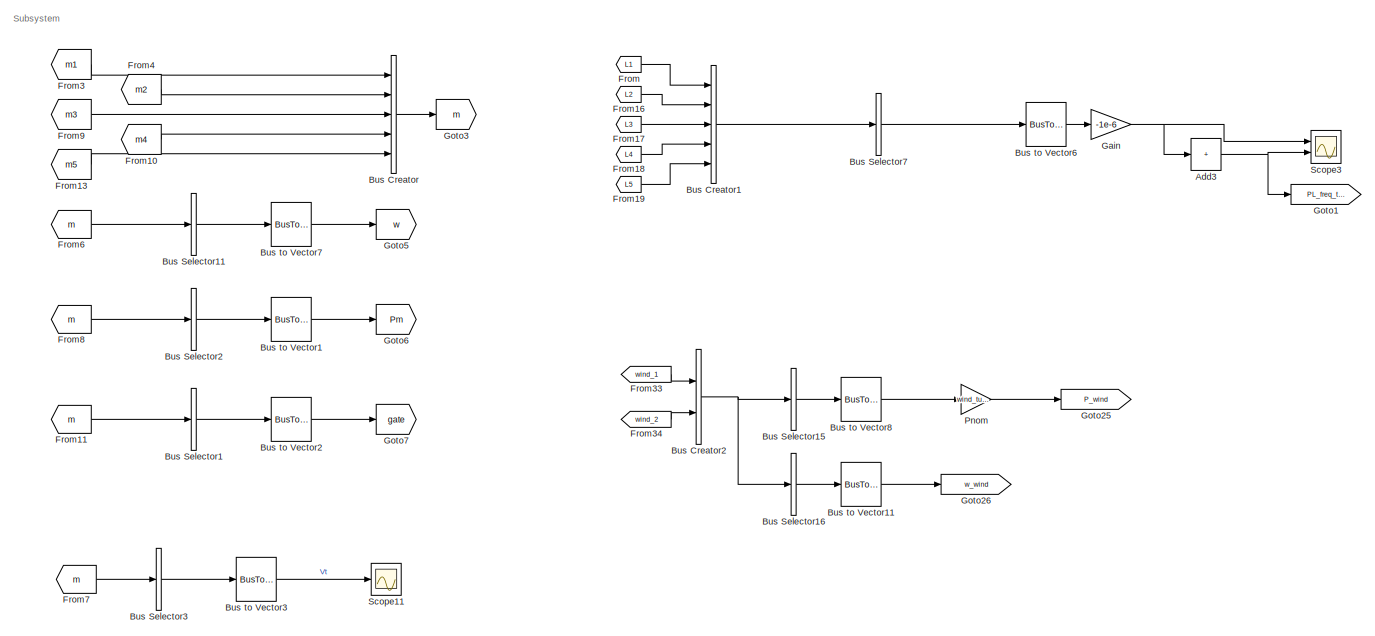
[diagram: root canvas - part 1/9, top left region]
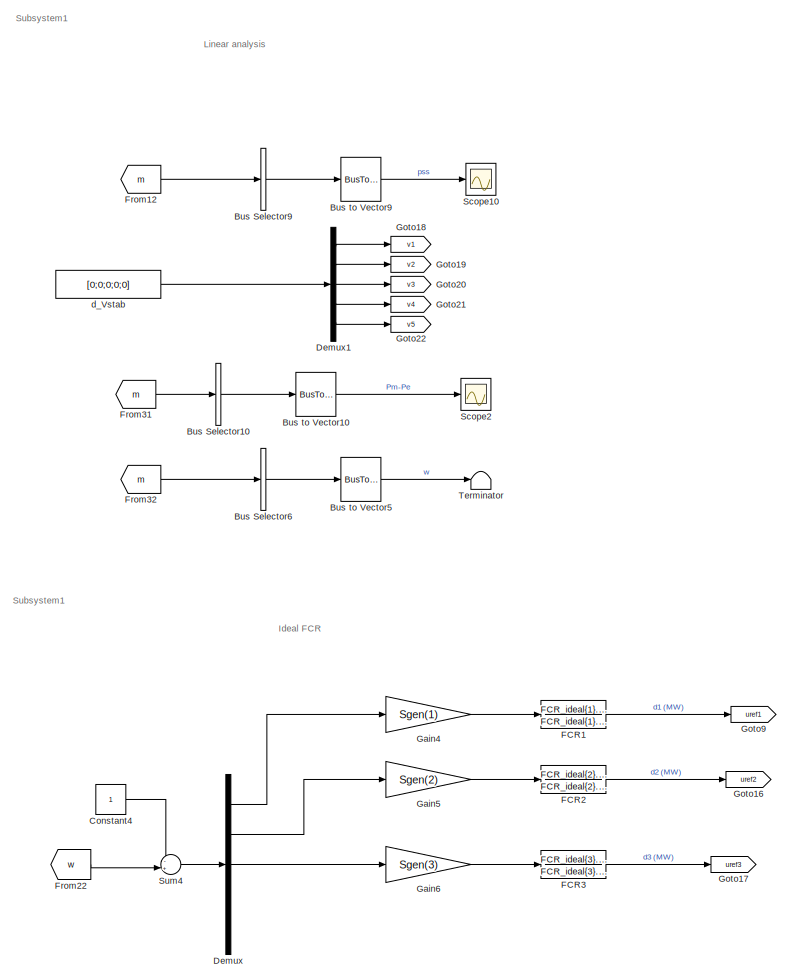
[diagram: root canvas - part 2/9, middle right region]
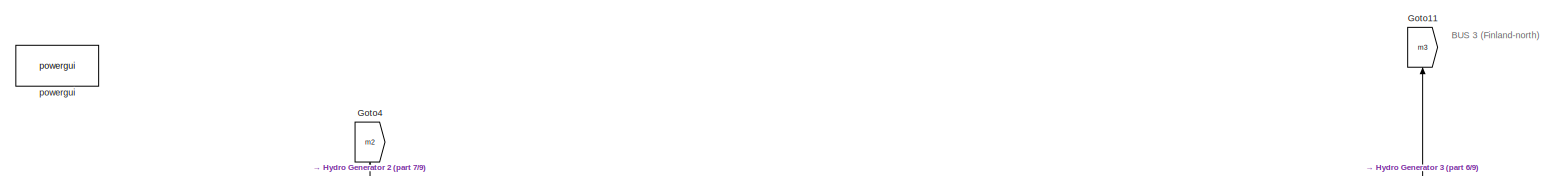
[diagram: root canvas - part 3/9, top center region]
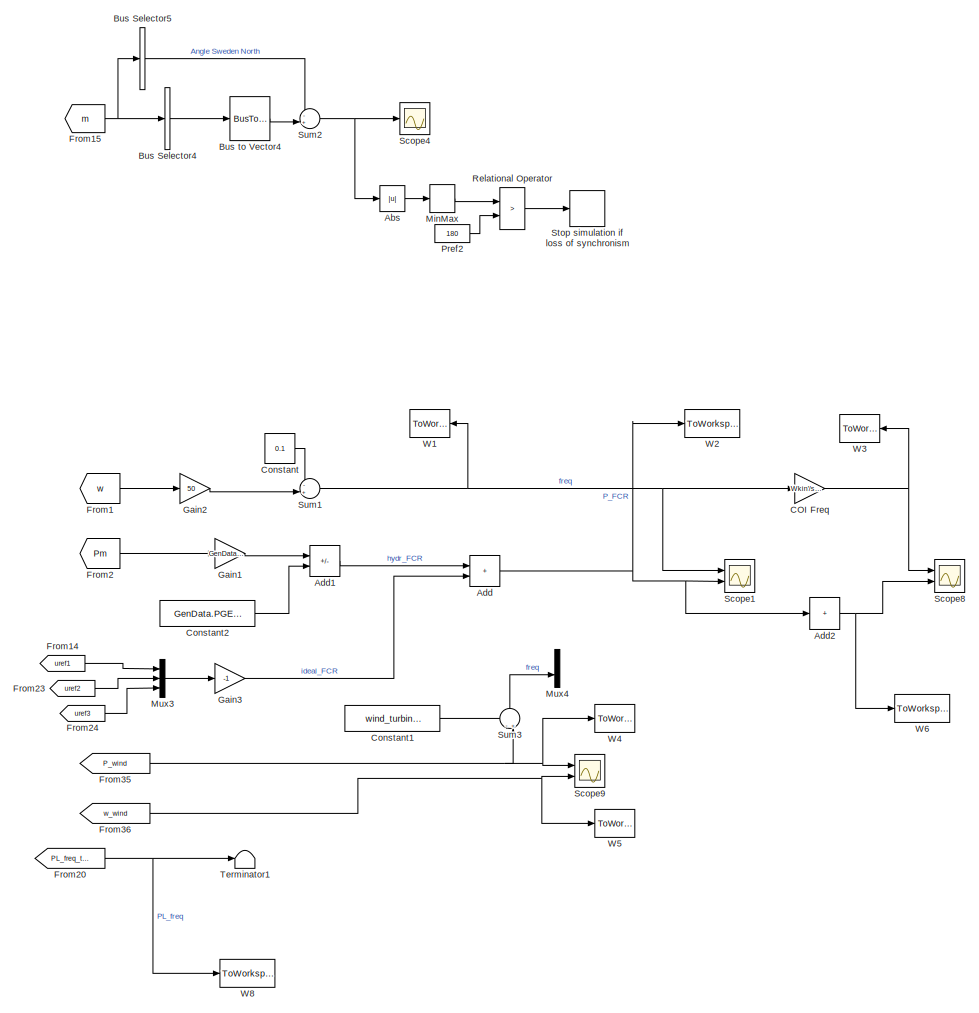
[diagram: root canvas - part 4/9, middle left region]
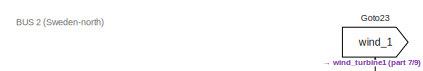
[diagram: root canvas - part 5/9, central region]
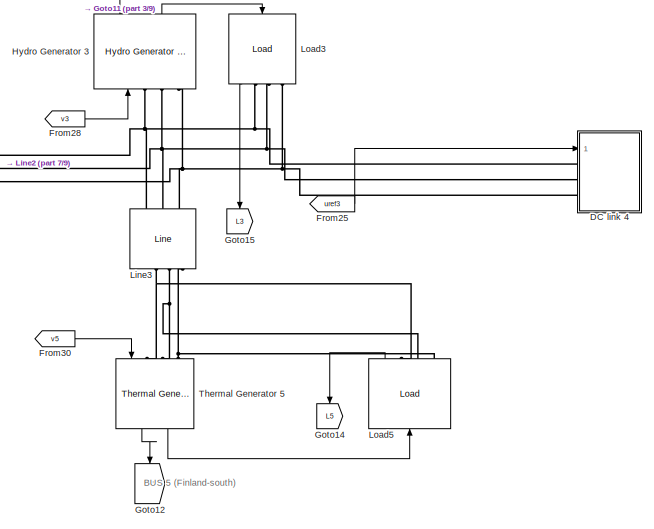
[diagram: root canvas - part 6/9, middle right region]
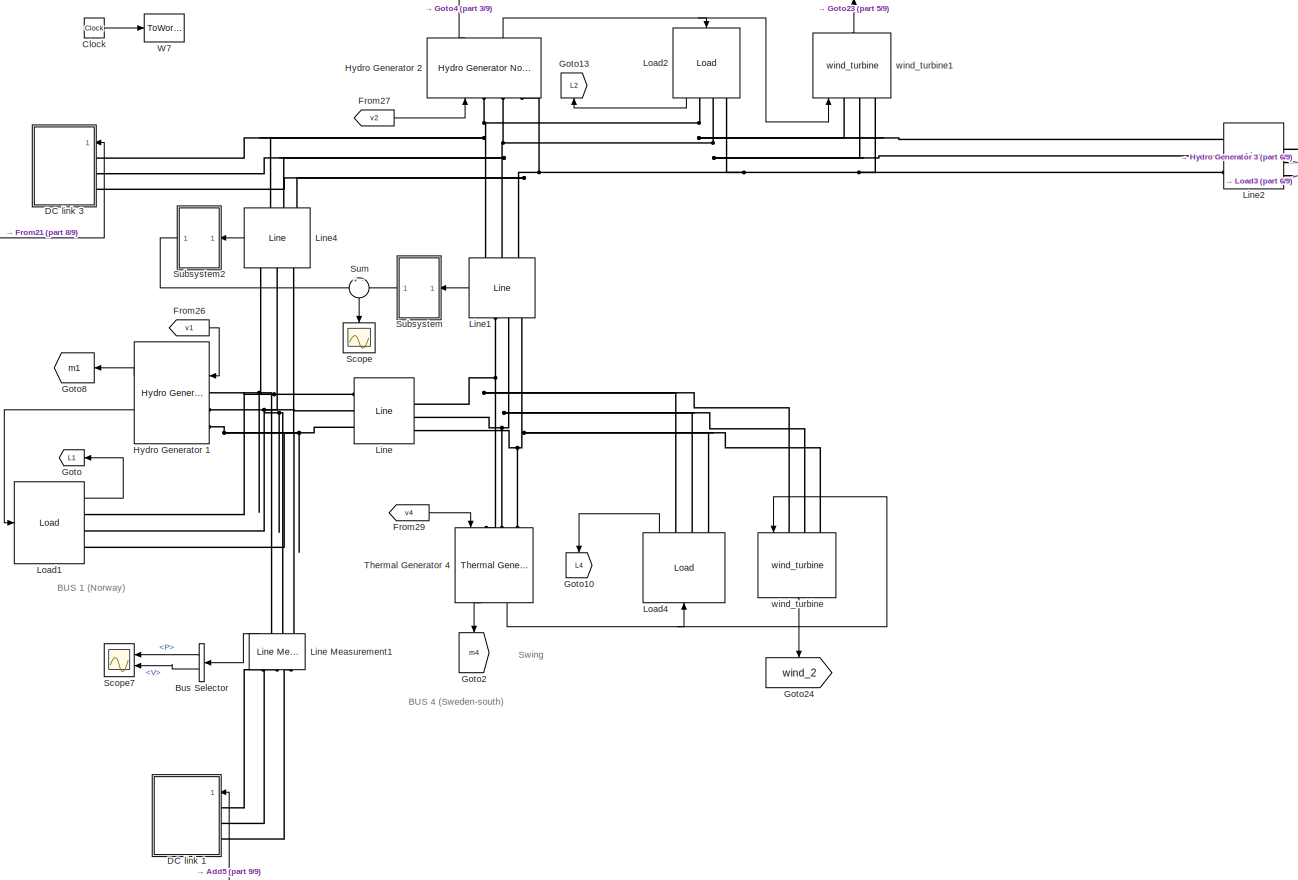
[diagram: root canvas - part 7/9, bottom center region]
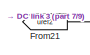
[diagram: root canvas - part 8/9, middle left region]
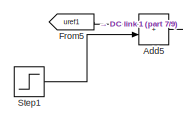
[diagram: root canvas - part 9/9, bottom center region]
MODEL slx_a2def950f768
KIND model
CONFIG AbsTol = 1e-1
CONFIG EnableMultiTasking = on
CONFIG FixedStep = auto
CONFIG MaxStep = 1/60
CONFIG MinStep = auto
CONFIG PreLoadFcn = %load_Nordic32_data;\n
CONFIG RelTol = 1e-2
CONFIG SampleTimeConstraint = Unconstrained
CONFIG Solver = ode15s
CONFIG SolverName = ode15s
CONFIG StartTime = 0.0
CONFIG StopTime = 70
BLOCK [Abs] Abs
BLOCK [Sum] Add
  IconShape = rectangular
  Ports = [2, 1]
BLOCK [Sum] Add1
  IconShape = rectangular
  Inputs = +-
  Ports = [2, 1]
BLOCK [Sum] Add2
  IconShape = rectangular
  Inputs = +
  Ports = [1, 1]
BLOCK [Sum] Add3
  IconShape = rectangular
  Inputs = +
  Ports = [1, 1]
BLOCK [Sum] Add5
  IconShape = rectangular
  Ports = [2, 1]
BLOCK [BusCreator] Bus Creator
  DisplayOption = bar
  InheritFromInputs = on
  Inputs = 5
  Ports = [5, 1]
BLOCK [BusCreator] Bus Creator1
  DisplayOption = bar
  InheritFromInputs = on
  Inputs = 5
  Ports = [5, 1]
BLOCK [BusCreator] Bus Creator2
  Commented = on
  DisplayOption = bar
  InheritFromInputs = on
  Inputs = 2
  Ports = [2, 1]
BLOCK [BusSelector] Bus Selector
  NameLocation = top
  OutputSignals = P,V
  Ports = [1, 2]
BLOCK [BusSelector] Bus Selector1
  OutputAsBus = on
  OutputSignals = signal1.gate,signal2.gate,signal3.gate
  Ports = [1, 1]
BLOCK [BusSelector] Bus Selector10
  OutputAsBus = on
  OutputSignals = signal1.Pm-Pe,signal2.Pm-Pe,signal3.Pm-Pe,signal4.Pm-Pe,signal5.Pm-Pe
  Ports = [1, 1]
BLOCK [BusSelector] Bus Selector11
  OutputAsBus = on
  OutputSignals = signal1.Rotor speed  wm  (pu),signal2.Rotor speed  wm  (pu),signal3.Rotor speed  wm  (pu),signal4.Rotor speed  wm  (pu),signal5.Rotor speed  wm  (pu)
  Ports = [1, 1]
BLOCK [BusSelector] Bus Selector15
  Commented = on
  OutputAsBus = on
  OutputSignals = signal1.Pe/Prated,signal2.Pe/Prated
  Ports = [1, 1]
BLOCK [BusSelector] Bus Selector16
  Commented = on
  OutputAsBus = on
  OutputSignals = signal1.w/w_opt,signal2.w/w_opt
  Ports = [1, 1]
BLOCK [BusSelector] Bus Selector2
  OutputAsBus = on
  OutputSignals = signal1.Pm,signal2.Pm,signal3.Pm
  Ports = [1, 1]
BLOCK [BusSelector] Bus Selector3
  OutputAsBus = on
  OutputSignals = signal1.Stator voltage (pu),signal2.Stator voltage (pu),signal3.Stator voltage (pu),signal4.Stator voltage (pu),signal5.Stator voltage (pu)
  Ports = [1, 1]
BLOCK [BusSelector] Bus Selector4
  OutputAsBus = on
  OutputSignals = signal1.Rotor mechanical angle  theta (deg),signal2.Rotor mechanical angle  theta (deg),signal3.Rotor mechanical angle  theta (deg),signal4.Rotor mechanical angle  theta (deg),signal5.Rotor mechanical angle  theta (deg)
  Ports = [1, 1]
BLOCK [BusSelector] Bus Selector5
  OutputAsBus = on
  OutputSignals = signal1.Rotor mechanical angle  theta (deg)
  Ports = [1, 1]
BLOCK [BusSelector] Bus Selector6
  OutputAsBus = on
  OutputSignals = signal1.Rotor speed  wm  (pu),signal2.Rotor speed  wm  (pu),signal3.Rotor speed  wm  (pu),signal4.Rotor speed  wm  (pu),signal5.Rotor speed  wm  (pu)
  Ports = [1, 1]
BLOCK [BusSelector] Bus Selector7
  OutputAsBus = on
  OutputSignals = signal1.PL_freq,signal2.PL_freq,signal3.PL_freq,signal4.PL_freq,signal5.PL_freq
  Ports = [1, 1]
BLOCK [BusSelector] Bus Selector9
  OutputAsBus = on
  OutputSignals = signal1.pss,signal2.pss,signal3.pss,signal4.pss,signal5.pss
  Ports = [1, 1]
BLOCK [BusToVector] Bus to Vector1
BLOCK [BusToVector] Bus to Vector10
BLOCK [BusToVector] Bus to Vector11
  Commented = on
BLOCK [BusToVector] Bus to Vector2
BLOCK [BusToVector] Bus to Vector3
BLOCK [BusToVector] Bus to Vector4
BLOCK [BusToVector] Bus to Vector5
BLOCK [BusToVector] Bus to Vector6
BLOCK [BusToVector] Bus to Vector7
BLOCK [BusToVector] Bus to Vector8
  Commented = on
BLOCK [BusToVector] Bus to Vector9
BLOCK [Gain] COI Freq
  Gain = Wkin'/sum(Wkin)
  Multiplication = Matrix(K*u)
BLOCK [Clock] Clock
BLOCK [Constant] Constant
  Value = 0.1
BLOCK [Constant] Constant1
  Commented = on
  Value = wind_turbines.POPT
BLOCK [Constant] Constant2
  Value = GenData.PGEN(1:3)
BLOCK [Constant] Constant4
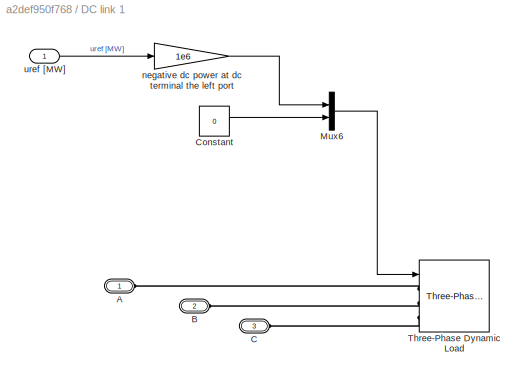
BLOCK [SubSystem] DC link 1
  PortSchema = {"entries":[{"content":{"sides":[{"content":{"connectorIds":["LConn1","LConn2","LConn3","In1"]},"type":"ConnectorPlacement.EquallySpacedRectSide","uuid":"48445341-a685-4506-9ec8-e376e0c1b939"},{"content":{"connectorIds":[],"side":"RIGHT"},"type":"ConnectorPlacement.EquallySpacedRectSide","uuid":"cf3481ef-9523-4ae9-af94-5a03f7da080c"},{"content":{"connectorIds":[],"side":"TOP"},"type":"ConnectorPla...<+263ch>  <repeated x3 — deduplicated; at blocks: DC link 1, DC link 3, DC link 4>
  Ports = [1, 0, 0, 0, 0, 3]
  RequestExecContextInheritance = off
BLOCK [PMIOPort] DC link 1/A
  Side = Left
BLOCK [PMIOPort] DC link 1/B
  Port = 2
  Side = Left
BLOCK [PMIOPort] DC link 1/C
  Port = 3
  Side = Left
BLOCK [Constant] DC link 1/Constant
  Value = 0
BLOCK [Mux] DC link 1/Mux6
  DisplayOption = bar
  Inputs = 2
  Ports = [2, 1]
BLOCK [Reference] DC link 1/Three-Phase Dynamic Load  REF=powerlib/Elements/Three-Phase
Dynamic Load
  Ports = [1, 1, 0, 0, 0, 3]
  SourceBlock = powerlib/Elements/Three-Phase\nDynamic Load
  SourceProductBaseCode = PS
  SourceType = Three-Phase Dynamic Load
BLOCK [Gain] DC link 1/negative dc power at dc terminal the left port
  Gain = 1e6
BLOCK [Inport] DC link 1/uref [MW]
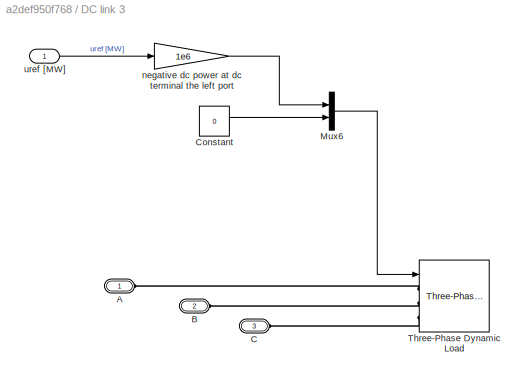
BLOCK [SubSystem] DC link 3
  Ports = [1, 0, 0, 0, 0, 3]
  RequestExecContextInheritance = off
BLOCK [PMIOPort] DC link 3/A
  Side = Left
BLOCK [PMIOPort] DC link 3/B
  Port = 2
  Side = Left
BLOCK [PMIOPort] DC link 3/C
  Port = 3
  Side = Left
BLOCK [Constant] DC link 3/Constant
  Value = 0
BLOCK [Mux] DC link 3/Mux6
  DisplayOption = bar
  Inputs = 2
  Ports = [2, 1]
BLOCK [Reference] DC link 3/Three-Phase Dynamic Load  REF=powerlib/Elements/Three-Phase
Dynamic Load
  Ports = [1, 1, 0, 0, 0, 3]
  SourceBlock = powerlib/Elements/Three-Phase\nDynamic Load
  SourceProductBaseCode = PS
  SourceType = Three-Phase Dynamic Load
BLOCK [Gain] DC link 3/negative dc power at dc terminal the left port
  Gain = 1e6
BLOCK [Inport] DC link 3/uref [MW]
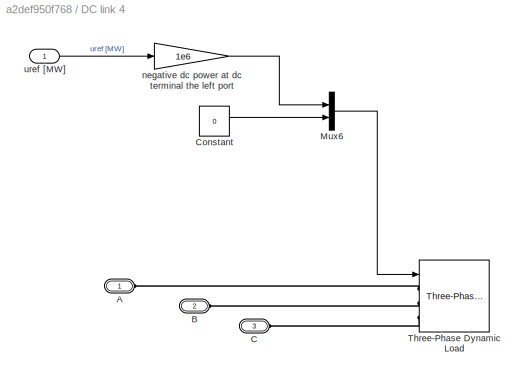
BLOCK [SubSystem] DC link 4
  Ports = [1, 0, 0, 0, 0, 3]
  RequestExecContextInheritance = off
BLOCK [PMIOPort] DC link 4/A
  Side = Left
BLOCK [PMIOPort] DC link 4/B
  Port = 2
  Side = Left
BLOCK [PMIOPort] DC link 4/C
  Port = 3
  Side = Left
BLOCK [Constant] DC link 4/Constant
  Value = 0
BLOCK [Mux] DC link 4/Mux6
  DisplayOption = bar
  Inputs = 2
  Ports = [2, 1]
BLOCK [Reference] DC link 4/Three-Phase Dynamic Load  REF=powerlib/Elements/Three-Phase
Dynamic Load
  Ports = [1, 1, 0, 0, 0, 3]
  SourceBlock = powerlib/Elements/Three-Phase\nDynamic Load
  SourceProductBaseCode = PS
  SourceType = Three-Phase Dynamic Load
BLOCK [Gain] DC link 4/negative dc power at dc terminal the left port
  Gain = 1e6
BLOCK [Inport] DC link 4/uref [MW]
BLOCK [Demux] Demux
  Outputs = 5
  Ports = [1, 5]
BLOCK [Demux] Demux1
  Outputs = 5
  Ports = [1, 5]
BLOCK [TransferFcn] FCR1
  Denominator = FCR_ideal{1}.DEN{1}
  Numerator = FCR_ideal{1}.NUM{1}
BLOCK [TransferFcn] FCR2
  Denominator = FCR_ideal{2}.DEN{1}
  Numerator = FCR_ideal{2}.NUM{1}
BLOCK [TransferFcn] FCR3
  Denominator = FCR_ideal{3}.DEN{1}
  Numerator = FCR_ideal{3}.NUM{1}
BLOCK [From] From
  GotoTag = L1
BLOCK [From] From1
  GotoTag = w
BLOCK [From] From10
  GotoTag = m4
BLOCK [From] From11
  GotoTag = m
BLOCK [From] From12
  GotoTag = m
BLOCK [From] From13
  GotoTag = m5
BLOCK [From] From14
  GotoTag = uref1
BLOCK [From] From15
  GotoTag = m
BLOCK [From] From16
  GotoTag = L2
BLOCK [From] From17
  GotoTag = L3
BLOCK [From] From18
  GotoTag = L4
BLOCK [From] From19
  GotoTag = L5
BLOCK [From] From2
  GotoTag = Pm
BLOCK [From] From20
  GotoTag = PL_freq_tot
BLOCK [From] From21
  GotoTag = uref2
BLOCK [From] From22
  GotoTag = w
BLOCK [From] From23
  GotoTag = uref2
BLOCK [From] From24
  GotoTag = uref3
BLOCK [From] From25
  GotoTag = uref3
BLOCK [From] From26
  GotoTag = v1
BLOCK [From] From27
  GotoTag = v2
BLOCK [From] From28
  GotoTag = v3
BLOCK [From] From29
  GotoTag = v4
BLOCK [From] From3
  GotoTag = m1
BLOCK [From] From30
  GotoTag = v5
BLOCK [From] From31
  GotoTag = m
BLOCK [From] From32
  GotoTag = m
BLOCK [From] From33
  Commented = on
  GotoTag = wind_1
BLOCK [From] From34
  Commented = on
  GotoTag = wind_2
BLOCK [From] From35
  Commented = on
  GotoTag = P_wind
BLOCK [From] From36
  Commented = on
  GotoTag = w_wind
BLOCK [From] From4
  GotoTag = m2
BLOCK [From] From5
  GotoTag = uref1
BLOCK [From] From6
  GotoTag = m
BLOCK [From] From7
  GotoTag = m
BLOCK [From] From8
  GotoTag = m
BLOCK [From] From9
  GotoTag = m3
BLOCK [Gain] Gain
  Gain = -1e-6
BLOCK [Gain] Gain1
  Gain = GenData.MBASE(1:3)
BLOCK [Gain] Gain2
  Gain = 50
BLOCK [Gain] Gain3
  Gain = -1
BLOCK [Gain] Gain4
  Gain = Sgen(1)
BLOCK [Gain] Gain5
  Gain = Sgen(2)
BLOCK [Gain] Gain6
  Gain = Sgen(3)
BLOCK [Goto] Goto
  GotoTag = L1
  NameLocation = top
BLOCK [Goto] Goto1
  GotoTag = PL_freq_tot
BLOCK [Goto] Goto10
  GotoTag = L4
  NameLocation = left
BLOCK [Goto] Goto11
  GotoTag = m3
  NameLocation = left
BLOCK [Goto] Goto12
  GotoTag = m5
  NameLocation = right
BLOCK [Goto] Goto13
  GotoTag = L2
  NameLocation = right
BLOCK [Goto] Goto14
  GotoTag = L5
  NameLocation = left
BLOCK [Goto] Goto15
  GotoTag = L3
  NameLocation = left
BLOCK [Goto] Goto16
  GotoTag = uref2
BLOCK [Goto] Goto17
  GotoTag = uref3
BLOCK [Goto] Goto18
  GotoTag = v1
BLOCK [Goto] Goto19
  GotoTag = v2
BLOCK [Goto] Goto2
  GotoTag = m4
  NameLocation = right
BLOCK [Goto] Goto20
  GotoTag = v3
BLOCK [Goto] Goto21
  GotoTag = v4
BLOCK [Goto] Goto22
  GotoTag = v5
BLOCK [Goto] Goto23
  Commented = on
  GotoTag = wind_1
  NameLocation = left
BLOCK [Goto] Goto24
  Commented = on
  GotoTag = wind_2
  NameLocation = right
BLOCK [Goto] Goto25
  Commented = on
  GotoTag = P_wind
BLOCK [Goto] Goto26
  Commented = on
  GotoTag = w_wind
BLOCK [Goto] Goto3
  GotoTag = m
  NameLocation = top
BLOCK [Goto] Goto4
  GotoTag = m2
  NameLocation = left
BLOCK [Goto] Goto5
  GotoTag = w
BLOCK [Goto] Goto6
  GotoTag = Pm
BLOCK [Goto] Goto7
  GotoTag = gate
BLOCK [Goto] Goto8
  GotoTag = m1
BLOCK [Goto] Goto9
  GotoTag = uref1
BLOCK [Reference] Hydro Generator 1  REF=Nordic32_Lib/Hydro Generator
Nordic32
  Ports = [2, 2, 0, 0, 0, 3]
  SourceBlock = Nordic32_Lib/Hydro Generator\nNordic32
BLOCK [Reference] Hydro Generator 2  REF=Nordic32_Lib/Hydro Generator
Nordic32
  NameLocation = left
  Ports = [2, 2, 0, 0, 0, 3]
  SourceBlock = Nordic32_Lib/Hydro Generator\nNordic32
BLOCK [Reference] Hydro Generator 3  REF=Nordic32_Lib/Hydro Generator
Nordic32
  NameLocation = left
  Ports = [2, 2, 0, 0, 0, 3]
  SourceBlock = Nordic32_Lib/Hydro Generator\nNordic32
BLOCK [Reference] Line  REF=Nordic32_Lib/Line
  Ports = [0, 1, 0, 0, 0, 3, 3]
  SourceBlock = Nordic32_Lib/Line
BLOCK [Reference] Line Measurement1  REF=Nordic32_Lib/Line 
Measurement
  NameLocation = right
  Ports = [0, 1, 0, 0, 0, 3, 3]
  SourceBlock = Nordic32_Lib/Line \nMeasurement
BLOCK [Reference] Line1  REF=Nordic32_Lib/Line
  NameLocation = left
  Ports = [0, 1, 0, 0, 0, 3, 3]
  SourceBlock = Nordic32_Lib/Line
BLOCK [Reference] Line2  REF=Nordic32_Lib/Line
  Ports = [0, 1, 0, 0, 0, 3, 3]
  SourceBlock = Nordic32_Lib/Line
BLOCK [Reference] Line3  REF=Nordic32_Lib/Line
  NameLocation = left
  Ports = [0, 1, 0, 0, 0, 3, 3]
  SourceBlock = Nordic32_Lib/Line
BLOCK [Reference] Line4  REF=Nordic32_Lib/Line
  NameLocation = left
  Ports = [0, 1, 0, 0, 0, 3, 3]
  SourceBlock = Nordic32_Lib/Line
BLOCK [Reference] Load1  REF=Nordic32_Lib/Load
  Ports = [1, 1, 0, 0, 0, 0, 3]
  SourceBlock = Nordic32_Lib/Load
BLOCK [Reference] Load2  REF=Nordic32_Lib/Load
  NameLocation = left
  Ports = [1, 1, 0, 0, 0, 0, 3]
  SourceBlock = Nordic32_Lib/Load
BLOCK [Reference] Load3  REF=Nordic32_Lib/Load
  NameLocation = left
  Ports = [1, 1, 0, 0, 0, 0, 3]
  SourceBlock = Nordic32_Lib/Load
BLOCK [Reference] Load4  REF=Nordic32_Lib/Load
  NameLocation = right
  Ports = [1, 1, 0, 0, 0, 0, 3]
  SourceBlock = Nordic32_Lib/Load
BLOCK [Reference] Load5  REF=Nordic32_Lib/Load
  NameLocation = right
  Ports = [1, 1, 0, 0, 0, 0, 3]
  SourceBlock = Nordic32_Lib/Load
BLOCK [MinMax] MinMax
  Function = max
  InputSameDT = on
  Ports = [1, 1]
  SaturateOnIntegerOverflow = on
BLOCK [Mux] Mux3
  DisplayOption = bar
  Inputs = 3
  Ports = [3, 1]
BLOCK [Mux] Mux4
  DisplayOption = bar
  Inputs = 2
  Ports = [2, 1]
BLOCK [Gain] Pnom
  Commented = on
  Gain = wind_turbines.MBASE
BLOCK [Constant] Pref2
  NameLocation = top
  Value = 180
BLOCK [RelationalOperator] Relational Operator
  Operator = >
  Ports = [2, 1]
BLOCK [Scope] Scope
  Floating = off
  NameLocation = left
  NumInputPorts = 1
  Ports = [1]
  ScopeSpecificationString = Simulink.scopes.TimeScopeBlockCfg('CurrentConfiguration', extmgr.ConfigurationSet(extmgr.Configuration('Core','General UI',true),extmgr.Configuration('Core','Source UI',true),extmgr.Configuration('Sources','WiredSimulink',true,'DataLoggingVariableName','ScopeData1'),extmgr.Configuration('Visuals','Time Domain',true,'SerializedDisplays',{struct('MinYLimReal','-6041.871','MaxYLimReal','-4644.60471',...<+1407ch>
BLOCK [Scope] Scope1
  Floating = off
  NumInputPorts = 2
  Ports = [2]
  ScopeSpecificationString = Simulink.scopes.TimeScopeBlockCfg('CurrentConfiguration', extmgr.ConfigurationSet(extmgr.Configuration('Core','General UI',true),extmgr.Configuration('Core','Source UI',true),extmgr.Configuration('Sources','WiredSimulink',true,'DataLoggingVariableName','ScopeData1'),extmgr.Configuration('Visuals','Time Domain',true,'SerializedDisplays',{struct('MinYLimReal','49.01304','MaxYLimReal','49.99862','YLa...<+2131ch>
BLOCK [Scope] Scope10
  Floating = off
  NumInputPorts = 1
  Ports = [1]
  ScopeSpecificationString = Simulink.scopes.TimeScopeBlockCfg('CurrentConfiguration', extmgr.ConfigurationSet(extmgr.Configuration('Core','General UI',true),extmgr.Configuration('Core','Source UI',true),extmgr.Configuration('Sources','WiredSimulink',true,'DataLoggingVariableName','ScopeData1'),extmgr.Configuration('Visuals','Time Domain',true,'SerializedDisplays',{struct('MinYLimReal','-0.03041','MaxYLimReal','0.02152','YLab...<+1427ch>
BLOCK [Scope] Scope11
  Floating = off
  NumInputPorts = 1
  Ports = [1]
  ScopeSpecificationString = Simulink.scopes.TimeScopeBlockCfg('CurrentConfiguration', extmgr.ConfigurationSet(extmgr.Configuration('Core','General UI',true),extmgr.Configuration('Core','Source UI',true),extmgr.Configuration('Sources','WiredSimulink',true,'DataLoggingVariableName','ScopeData1'),extmgr.Configuration('Visuals','Time Domain',true,'SerializedDisplays',{struct('MinYLimReal','-13.16759','MaxYLimReal','18.2168','YLa...<+1403ch>
BLOCK [Scope] Scope2
  Floating = off
  NumInputPorts = 1
  Ports = [1]
  ScopeSpecificationString = Simulink.scopes.TimeScopeBlockCfg('CurrentConfiguration', extmgr.ConfigurationSet(extmgr.Configuration('Core','General UI',true),extmgr.Configuration('Core','Source UI',true),extmgr.Configuration('Sources','WiredSimulink',true,'DataLoggingVariableName','ScopeData1'),extmgr.Configuration('Visuals','Time Domain',true,'SerializedDisplays',{struct('MinYLimReal','-0.26641','MaxYLimReal','0.15812','YLab...<+1406ch>
BLOCK [Scope] Scope3
  Floating = off
  NumInputPorts = 2
  Ports = [2]
  ScopeSpecificationString = Simulink.scopes.TimeScopeBlockCfg('CurrentConfiguration', extmgr.ConfigurationSet(extmgr.Configuration('Core','General UI',true),extmgr.Configuration('Core','Source UI',true),extmgr.Configuration('Sources','WiredSimulink',true,'DataLoggingVariableName','ScopeData1'),extmgr.Configuration('Visuals','Time Domain',true,'SerializedDisplays',{struct('MinYLimReal','-49.42934','MaxYLimReal','234.70482','Y...<+2137ch>
BLOCK [Scope] Scope4
  Floating = off
  NumInputPorts = 1
  Ports = [1]
  ScopeSpecificationString = Simulink.scopes.TimeScopeBlockCfg('CurrentConfiguration', extmgr.ConfigurationSet(extmgr.Configuration('Core','General UI',true),extmgr.Configuration('Core','Source UI',true),extmgr.Configuration('Sources','WiredSimulink',true,'DataLoggingVariableName','ScopeData1'),extmgr.Configuration('Visuals','Time Domain',true,'SerializedDisplays',{struct('MinYLimReal','-3.14075','MaxYLimReal','28.26671','YLa...<+1434ch>
BLOCK [Scope] Scope7
  Floating = off
  NameLocation = top
  NumInputPorts = 2
  Ports = [2]
  ScopeSpecificationString = Simulink.scopes.TimeScopeBlockCfg('CurrentConfiguration', extmgr.ConfigurationSet(extmgr.Configuration('Core','General UI',true),extmgr.Configuration('Core','Source UI',true),extmgr.Configuration('Sources','WiredSimulink',true,'DataLoggingVariableName','ScopeData2'),extmgr.Configuration('Visuals','Time Domain',true,'SerializedDisplays',{struct('MinYLimReal','-1614639838.32159','MaxYLimReal','17940...<+2059ch>
BLOCK [Scope] Scope8
  Floating = off
  NumInputPorts = 2
  Ports = [2]
  ScopeSpecificationString = Simulink.scopes.TimeScopeBlockCfg('CurrentConfiguration', extmgr.ConfigurationSet(extmgr.Configuration('Core','General UI',true),extmgr.Configuration('Core','Source UI',true),extmgr.Configuration('Sources','WiredSimulink',true,'DataLoggingVariableName','ScopeData2'),extmgr.Configuration('Visuals','Time Domain',true,'SerializedDisplays',{struct('MinYLimReal','49.08303','MaxYLimReal','49.99079','YLa...<+2050ch>
BLOCK [Scope] Scope9
  Commented = on
  Floating = off
  NumInputPorts = 2
  Ports = [2]
  ScopeSpecificationString = Simulink.scopes.TimeScopeBlockCfg('CurrentConfiguration', extmgr.ConfigurationSet(extmgr.Configuration('Core','General UI',true),extmgr.Configuration('Core','Source UI',true),extmgr.Configuration('Sources','WiredSimulink',true,'DataLoggingVariableName','ScopeData3'),extmgr.Configuration('Visuals','Time Domain',true,'SerializedDisplays',{struct('MinYLimReal','183.53555','MaxYLimReal','879.84187','Y...<+2084ch>
BLOCK [Step] Step1
  After = d_fault
  SampleTime = 0
  Time = time_event
BLOCK [Stop] Stop simulation if loss of synchronism
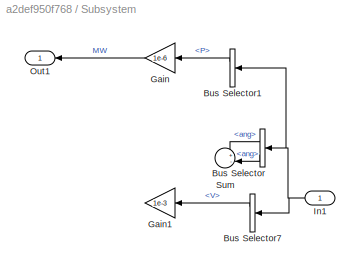
BLOCK [SubSystem] Subsystem
  NameLocation = top
  Ports = [1, 1]
  RequestExecContextInheritance = off
BLOCK [BusSelector] Subsystem/Bus Selector
  Commented = on
  NameLocation = top
  OutputSignals = signal1.ang,signal2.ang
  Ports = [1, 2]
BLOCK [BusSelector] Subsystem/Bus Selector1
  NameLocation = top
  OutputSignals = signal1.P,signal2.P
  Ports = [1, 2]
BLOCK [BusSelector] Subsystem/Bus Selector7
  Commented = on
  NameLocation = top
  OutputSignals = signal1.V,signal2.V
  Ports = [1, 2]
BLOCK [Gain] Subsystem/Gain
  Gain = 1e-6
  NameLocation = top
BLOCK [Gain] Subsystem/Gain1
  Commented = on
  Gain = 1e-3
  NameLocation = top
BLOCK [Inport] Subsystem/In1
BLOCK [Outport] Subsystem/Out1
BLOCK [Sum] Subsystem/Sum
  Commented = on
  Inputs = +-|
  NameLocation = top
  Ports = [2, 1]
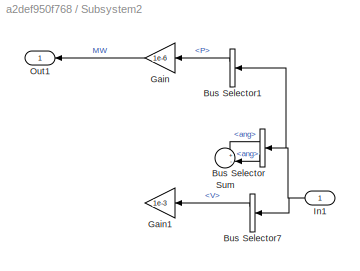
BLOCK [SubSystem] Subsystem2
  NameLocation = top
  Ports = [1, 1]
  RequestExecContextInheritance = off
BLOCK [BusSelector] Subsystem2/Bus Selector
  Commented = on
  NameLocation = top
  OutputSignals = signal1.ang,signal2.ang
  Ports = [1, 2]
BLOCK [BusSelector] Subsystem2/Bus Selector1
  NameLocation = top
  OutputSignals = signal1.P,signal2.P
  Ports = [1, 2]
BLOCK [BusSelector] Subsystem2/Bus Selector7
  Commented = on
  NameLocation = top
  OutputSignals = signal1.V,signal2.V
  Ports = [1, 2]
BLOCK [Gain] Subsystem2/Gain
  Gain = 1e-6
  NameLocation = top
BLOCK [Gain] Subsystem2/Gain1
  Commented = on
  Gain = 1e-3
  NameLocation = top
BLOCK [Inport] Subsystem2/In1
BLOCK [Outport] Subsystem2/Out1
BLOCK [Sum] Subsystem2/Sum
  Commented = on
  Inputs = +-|
  NameLocation = top
  Ports = [2, 1]
BLOCK [Sum] Sum
  Inputs = +-
  NameLocation = left
  Ports = [2, 1]
BLOCK [Sum] Sum1
  Inputs = -+|
  Ports = [2, 1]
BLOCK [Sum] Sum2
  Inputs = -+|
  Ports = [2, 1]
BLOCK [Sum] Sum3
  Commented = on
  Inputs = -+|
  NameLocation = right
  Ports = [2, 1]
BLOCK [Sum] Sum4
  Inputs = -+|
  Ports = [2, 1]
BLOCK [Terminator] Terminator
BLOCK [Terminator] Terminator1
BLOCK [Reference] Thermal Generator 4  REF=Nordic32_Lib/Thermal Generator
Nordic32
  NameLocation = left
  Ports = [1, 2, 0, 0, 0, 3]
  SourceBlock = Nordic32_Lib/Thermal Generator\nNordic32
BLOCK [Reference] Thermal Generator 5  REF=Nordic32_Lib/Thermal Generator
Nordic32
  NameLocation = left
  Ports = [1, 2, 0, 0, 0, 3]
  SourceBlock = Nordic32_Lib/Thermal Generator\nNordic32
BLOCK [ToWorkspace] W1
  MaxDataPoints = inf
  NameLocation = top
  Ports = [1]
  SampleTime = 1/60
  VariableName = w
BLOCK [ToWorkspace] W2
  MaxDataPoints = inf
  Ports = [1]
  SampleTime = 1/60
  VariableName = P_FCR
BLOCK [ToWorkspace] W3
  MaxDataPoints = inf
  NameLocation = top
  Ports = [1]
  SampleTime = 1/60
  VariableName = w_coi
BLOCK [ToWorkspace] W4
  Commented = on
  MaxDataPoints = inf
  Ports = [1]
  SampleTime = 1/60
  VariableName = P_wind
BLOCK [ToWorkspace] W5
  Commented = on
  MaxDataPoints = inf
  Ports = [1]
  SampleTime = 1/60
  VariableName = w_wind
BLOCK [ToWorkspace] W6
  MaxDataPoints = inf
  Ports = [1]
  SampleTime = 1/60
  VariableName = P_FCR_tot
BLOCK [ToWorkspace] W7
  MaxDataPoints = inf
  Ports = [1]
  SampleTime = 1/60
  VariableName = t
BLOCK [ToWorkspace] W8
  MaxDataPoints = inf
  Ports = [1]
  SampleTime = 1/60
  VariableName = PL_freq_tot
BLOCK [Constant] d_Vstab
  Value = [0;0;0;0;0]
BLOCK [Reference] powergui  REF=powerlib/powergui
  Ports = []
  Priority = 2
  SourceBlock = powerlib/powergui
  SourceProductBaseCode = PS
  SourceType = PSB option menu block
BLOCK [Reference] wind_turbine  REF=Nordic32_Lib/wind_turbine
  Commented = on
  NameLocation = right
  Ports = [1, 3, 0, 0, 0, 3]
  SourceBlock = Nordic32_Lib/wind_turbine
BLOCK [Reference] wind_turbine1  REF=Nordic32_Lib/wind_turbine
  Commented = on
  NameLocation = left
  Ports = [1, 3, 0, 0, 0, 3]
  SourceBlock = Nordic32_Lib/wind_turbine
ANNOTATION (root): BUS 1 (Norway)
ANNOTATION (root): BUS 2 (Sweden-north)
ANNOTATION (root): BUS 3 (Finland-north)
ANNOTATION (root): BUS 4 (Sweden-south)
ANNOTATION (root): BUS 5 (Finland-south)
ANNOTATION (root): Swing
ANNOTATION (root): Ideal FCR
ANNOTATION (root): Linear analysis
ANNOTATION (root): Subsystem
ANNOTATION (root): Subsystem1
LINE Abs:1 -> MinMax:1
LINE Add1:1 -> Add:1
NET Add2:1 -> Scope8:2, W6:1
NET Add3:1 -> Goto1:1, Scope3:2
LINE Add5:1 -> DC link 1:1
NET Add:1 -> Add2:1, Scope1:2, W2:1
LINE Bus Creator1:1 -> Bus Selector7:1
NET Bus Creator2:1 -> Bus Selector15:1, Bus Selector16:1
LINE Bus Creator:1 -> Goto3:1
LINE Bus Selector10:1 -> Bus to Vector10:1
LINE Bus Selector11:1 -> Bus to Vector7:1
LINE Bus Selector15:1 -> Bus to Vector8:1
LINE Bus Selector16:1 -> Bus to Vector11:1
LINE Bus Selector1:1 -> Bus to Vector2:1
LINE Bus Selector2:1 -> Bus to Vector1:1
LINE Bus Selector3:1 -> Bus to Vector3:1
LINE Bus Selector4:1 -> Bus to Vector4:1
LINE Bus Selector5:1 -> Sum2:1
LINE Bus Selector6:1 -> Bus to Vector5:1
LINE Bus Selector7:1 -> Bus to Vector6:1
LINE Bus Selector9:1 -> Bus to Vector9:1
LINE Bus Selector:1 -> Scope7:1
LINE Bus Selector:2 -> Scope7:2
LINE Bus to Vector10:1 -> Scope2:1
LINE Bus to Vector11:1 -> Goto26:1
LINE Bus to Vector1:1 -> Goto6:1
LINE Bus to Vector2:1 -> Goto7:1
LINE Bus to Vector3:1 -> Scope11:1
LINE Bus to Vector4:1 -> Sum2:2
LINE Bus to Vector5:1 -> Terminator:1
LINE Bus to Vector6:1 -> Gain:1
LINE Bus to Vector7:1 -> Goto5:1
LINE Bus to Vector8:1 -> Pnom:1
LINE Bus to Vector9:1 -> Scope10:1
NET COI Freq:1 -> Scope8:1, W3:1
LINE Clock:1 -> W7:1
LINE Constant1:1 -> Sum3:1
LINE Constant2:1 -> Add1:2
LINE Constant4:1 -> Sum4:1
LINE Constant:1 -> Sum1:1
LINE DC link 1/Constant:1 -> DC link 1/Mux6:2
LINE DC link 1/Mux6:1 -> DC link 1/Three-Phase Dynamic Load:1
LINE DC link 1/negative dc power at dc terminal the left port:1 -> DC link 1/Mux6:1
LINE DC link 1/uref [MW]:1 -> DC link 1/negative dc power at dc terminal the left port:1
LINE DC link 3/Constant:1 -> DC link 3/Mux6:2
LINE DC link 3/Mux6:1 -> DC link 3/Three-Phase Dynamic Load:1
LINE DC link 3/negative dc power at dc terminal the left port:1 -> DC link 3/Mux6:1
LINE DC link 3/uref [MW]:1 -> DC link 3/negative dc power at dc terminal the left port:1
LINE DC link 4/Constant:1 -> DC link 4/Mux6:2
LINE DC link 4/Mux6:1 -> DC link 4/Three-Phase Dynamic Load:1
LINE DC link 4/negative dc power at dc terminal the left port:1 -> DC link 4/Mux6:1
LINE DC link 4/uref [MW]:1 -> DC link 4/negative dc power at dc terminal the left port:1
LINE Demux1:1 -> Goto18:1
LINE Demux1:2 -> Goto19:1
LINE Demux1:3 -> Goto20:1
LINE Demux1:4 -> Goto21:1
LINE Demux1:5 -> Goto22:1
LINE Demux:1 -> Gain4:1
LINE Demux:2 -> Gain5:1
LINE Demux:3 -> Gain6:1
LINE FCR1:1 -> Goto9:1
LINE FCR2:1 -> Goto16:1
LINE FCR3:1 -> Goto17:1
LINE From10:1 -> Bus Creator:4
LINE From11:1 -> Bus Selector1:1
LINE From12:1 -> Bus Selector9:1
LINE From13:1 -> Bus Creator:5
LINE From14:1 -> Mux3:1
NET From15:1 -> Bus Selector4:1, Bus Selector5:1
LINE From16:1 -> Bus Creator1:2
LINE From17:1 -> Bus Creator1:3
LINE From18:1 -> Bus Creator1:4
LINE From19:1 -> Bus Creator1:5
LINE From1:1 -> Gain2:1
NET From20:1 -> Terminator1:1, W8:1
LINE From21:1 -> DC link 3:1
LINE From22:1 -> Sum4:2
LINE From23:1 -> Mux3:2
LINE From24:1 -> Mux3:3
LINE From25:1 -> DC link 4:1
LINE From26:1 -> Hydro Generator 1:2
LINE From27:1 -> Hydro Generator 2:2
LINE From28:1 -> Hydro Generator 3:2
LINE From29:1 -> Thermal Generator 4:1
LINE From2:1 -> Gain1:1
LINE From30:1 -> Thermal Generator 5:1
LINE From31:1 -> Bus Selector10:1
LINE From32:1 -> Bus Selector6:1
LINE From33:1 -> Bus Creator2:1
LINE From34:1 -> Bus Creator2:2
NET From35:1 -> Scope9:1, Sum3:2, W4:1
NET From36:1 -> Scope9:2, W5:1
LINE From3:1 -> Bus Creator:1
LINE From4:1 -> Bus Creator:2
LINE From5:1 -> Add5:1
LINE From6:1 -> Bus Selector11:1
LINE From7:1 -> Bus Selector3:1
LINE From8:1 -> Bus Selector2:1
LINE From9:1 -> Bus Creator:3
LINE From:1 -> Bus Creator1:1
LINE Gain1:1 -> Add1:1
LINE Gain2:1 -> Sum1:2
LINE Gain3:1 -> Add:2
LINE Gain4:1 -> FCR1:1
LINE Gain5:1 -> FCR2:1
LINE Gain6:1 -> FCR3:1
NET Gain:1 -> Add3:1, Scope3:1
LINE Hydro Generator 1:1 -> Goto8:1
LINE Hydro Generator 1:2 -> Load1:1
LINE Hydro Generator 2:1 -> Goto4:1
NET Hydro Generator 2:2 -> Load2:1, wind_turbine1:1
LINE Hydro Generator 3:1 -> Goto11:1
LINE Hydro Generator 3:2 -> Load3:1
LINE Line Measurement1:1 -> Bus Selector:1
LINE Line1:1 -> Subsystem:1
LINE Line4:1 -> Subsystem2:1
LINE Load1:1 -> Goto:1
LINE Load2:1 -> Goto13:1
LINE Load3:1 -> Goto15:1
LINE Load4:1 -> Goto10:1
LINE Load5:1 -> Goto14:1
LINE MinMax:1 -> Relational Operator:1
LINE Mux3:1 -> Gain3:1
LINE Pnom:1 -> Goto25:1
LINE Pref2:1 -> Relational Operator:2
LINE Relational Operator:1 -> Stop simulation if loss of synchronism:1
LINE Step1:1 -> Add5:2
LINE Subsystem/Bus Selector1:1 -> Subsystem/Gain:1
LINE Subsystem/Bus Selector7:1 -> Subsystem/Gain1:1
LINE Subsystem/Bus Selector:1 -> Subsystem/Sum:1
LINE Subsystem/Bus Selector:2 -> Subsystem/Sum:2
LINE Subsystem/Gain:1 -> Subsystem/Out1:1
NET Subsystem/In1:1 -> Subsystem/Bus Selector1:1, Subsystem/Bus Selector7:1, Subsystem/Bus Selector:1
LINE Subsystem2/Bus Selector1:1 -> Subsystem2/Gain:1
LINE Subsystem2/Bus Selector7:1 -> Subsystem2/Gain1:1
LINE Subsystem2/Bus Selector:1 -> Subsystem2/Sum:1
LINE Subsystem2/Bus Selector:2 -> Subsystem2/Sum:2
LINE Subsystem2/Gain:1 -> Subsystem2/Out1:1
NET Subsystem2/In1:1 -> Subsystem2/Bus Selector1:1, Subsystem2/Bus Selector7:1, Subsystem2/Bus Selector:1
LINE Subsystem2:1 -> Sum:1
LINE Subsystem:1 -> Sum:2
NET Sum1:1 -> COI Freq:1, Scope1:1, W1:1
NET Sum2:1 -> Abs:1, Scope4:1
LINE Sum3:1 -> Mux4:2
LINE Sum4:1 -> Demux:1
LINE Sum:1 -> Scope:1
LINE Thermal Generator 4:1 -> Goto2:1
NET Thermal Generator 4:2 -> Load4:1, wind_turbine:1
LINE Thermal Generator 5:1 -> Goto12:1
LINE Thermal Generator 5:2 -> Load5:1
LINE d_Vstab:1 -> Demux1:1
LINE wind_turbine1:2 -> Goto23:1
LINE wind_turbine:2 -> Goto24:1
PLINE DC link 1/A:RConn1 -- DC link 1/Three-Phase Dynamic Load:LConn1
PLINE DC link 1/B:RConn1 -- DC link 1/Three-Phase Dynamic Load:LConn2
PLINE DC link 1/C:RConn1 -- DC link 1/Three-Phase Dynamic Load:LConn3
PLINE DC link 1:LConn1 -- Line Measurement1:LConn1
PLINE DC link 1:LConn2 -- Line Measurement1:LConn2
PLINE DC link 1:LConn3 -- Line Measurement1:LConn3
PLINE DC link 3/A:RConn1 -- DC link 3/Three-Phase Dynamic Load:LConn1
PLINE DC link 3/B:RConn1 -- DC link 3/Three-Phase Dynamic Load:LConn2
PLINE DC link 3/C:RConn1 -- DC link 3/Three-Phase Dynamic Load:LConn3
PNET net1: DC link 3:LConn1 -- Hydro Generator 2:LConn1 -- Line1:LConn1 -- Line2:LConn1 -- Line4:RConn1 -- Load2:RConn1 -- wind_turbine1:LConn1
PNET net2: DC link 3:LConn2 -- Hydro Generator 2:LConn2 -- Line1:LConn2 -- Line2:LConn2 -- Line4:RConn2 -- Load2:RConn2 -- wind_turbine1:LConn2
PNET net3: DC link 3:LConn3 -- Hydro Generator 2:LConn3 -- Line1:LConn3 -- Line2:LConn3 -- Line4:RConn3 -- Load2:RConn3 -- wind_turbine1:LConn3
PLINE DC link 4/A:RConn1 -- DC link 4/Three-Phase Dynamic Load:LConn1
PLINE DC link 4/B:RConn1 -- DC link 4/Three-Phase Dynamic Load:LConn2
PLINE DC link 4/C:RConn1 -- DC link 4/Three-Phase Dynamic Load:LConn3
PNET net4: DC link 4:LConn1 -- Hydro Generator 3:LConn1 -- Line2:RConn1 -- Line3:LConn1 -- Load3:RConn1
PNET net5: DC link 4:LConn2 -- Hydro Generator 3:LConn2 -- Line2:RConn2 -- Line3:LConn2 -- Load3:RConn2
PNET net6: DC link 4:LConn3 -- Hydro Generator 3:LConn3 -- Line2:RConn3 -- Line3:LConn3 -- Load3:RConn3
PNET net7: Hydro Generator 1:LConn1 -- Line Measurement1:RConn1 -- Line4:LConn1 -- Line:LConn1 -- Load1:RConn1
PNET net8: Hydro Generator 1:LConn2 -- Line Measurement1:RConn2 -- Line4:LConn2 -- Line:LConn2 -- Load1:RConn2
PNET net9: Hydro Generator 1:LConn3 -- Line Measurement1:RConn3 -- Line4:LConn3 -- Line:LConn3 -- Load1:RConn3
PNET net10: Line1:RConn1 -- Line:RConn1 -- Load4:RConn1 -- Thermal Generator 4:LConn1 -- wind_turbine:LConn1
PNET net11: Line1:RConn2 -- Line:RConn2 -- Load4:RConn2 -- Thermal Generator 4:LConn2 -- wind_turbine:LConn2
PNET net12: Line1:RConn3 -- Line:RConn3 -- Load4:RConn3 -- Thermal Generator 4:LConn3 -- wind_turbine:LConn3
PNET net13: Line3:RConn1 -- Load5:RConn1 -- Thermal Generator 5:LConn1
PNET net14: Line3:RConn2 -- Load5:RConn2 -- Thermal Generator 5:LConn2
PNET net15: Line3:RConn3 -- Load5:RConn3 -- Thermal Generator 5:LConn3
note: NET lines group one-source signal fan-out (src -> all destinations, sorted); 1:1 wires keep LINE; PNET lines group multi-terminal physical nets as a canonical sorted terminal list (undirected conserving connections); 2-terminal nets keep the pairwise PLINE form
